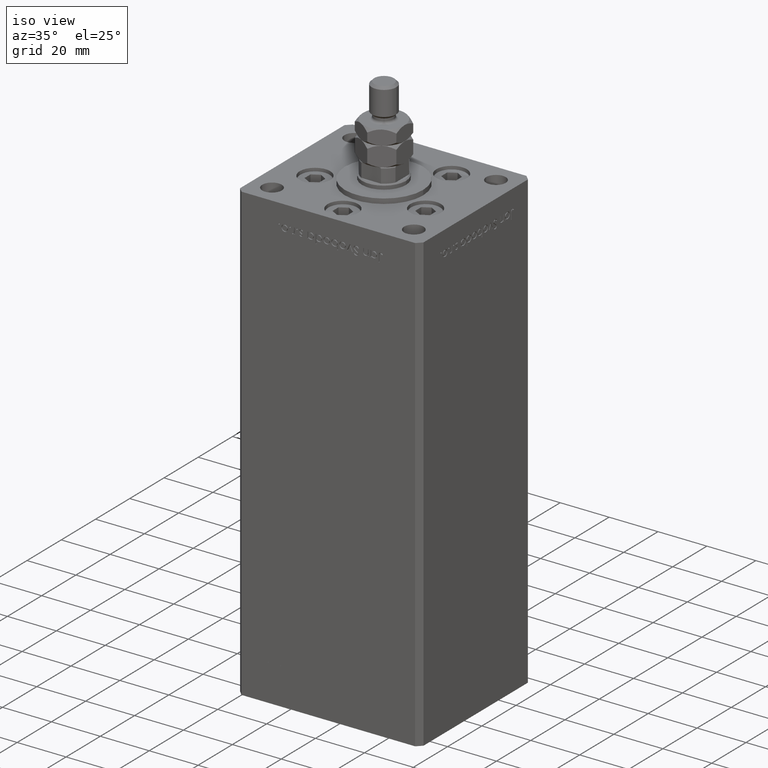
[diagram: clean part render]
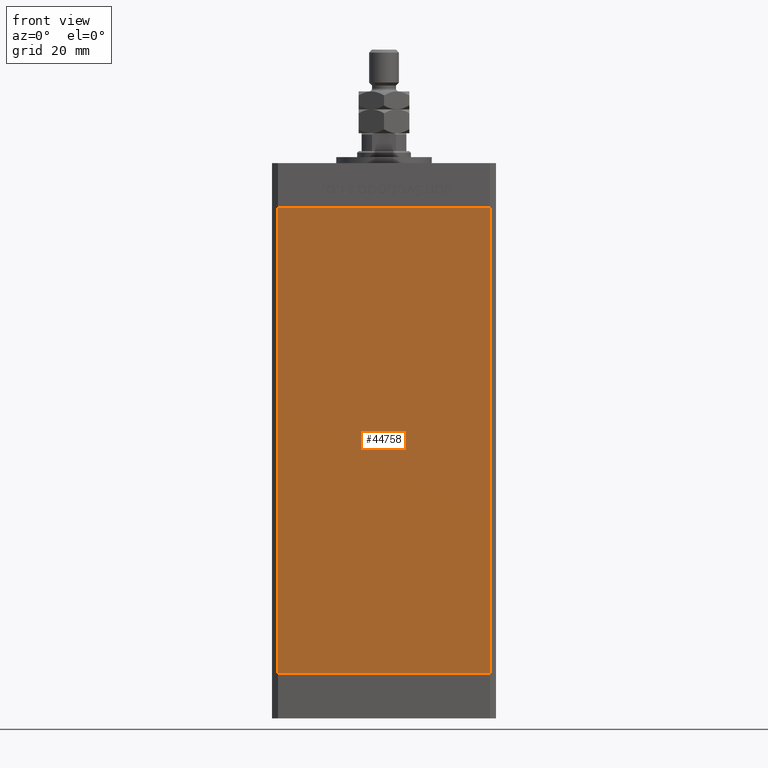
[diagram: tour spotlight — one face highlighted and labeled with its STEP entity id]
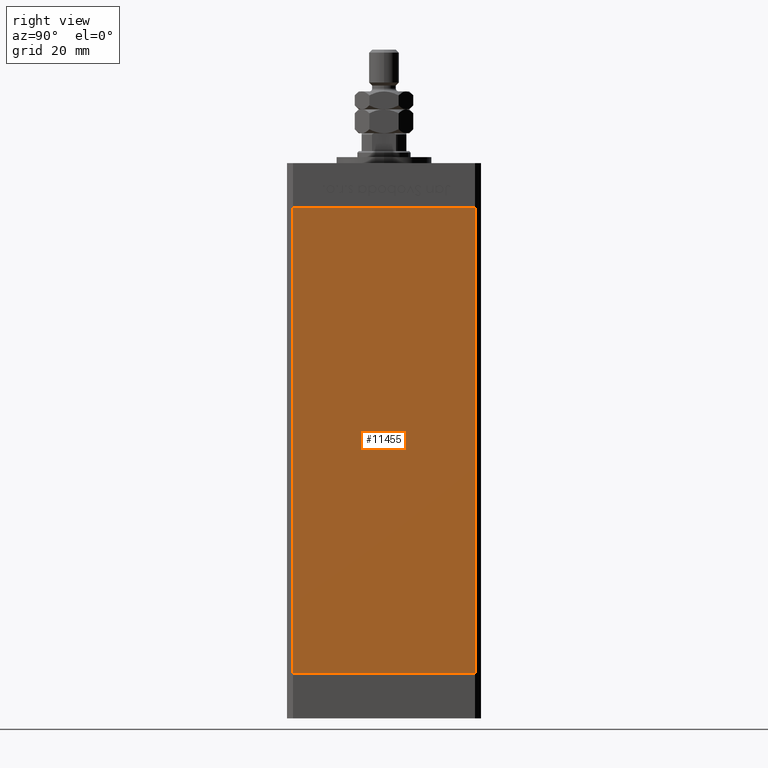
[diagram: tour spotlight — one face highlighted and labeled with its STEP entity id]
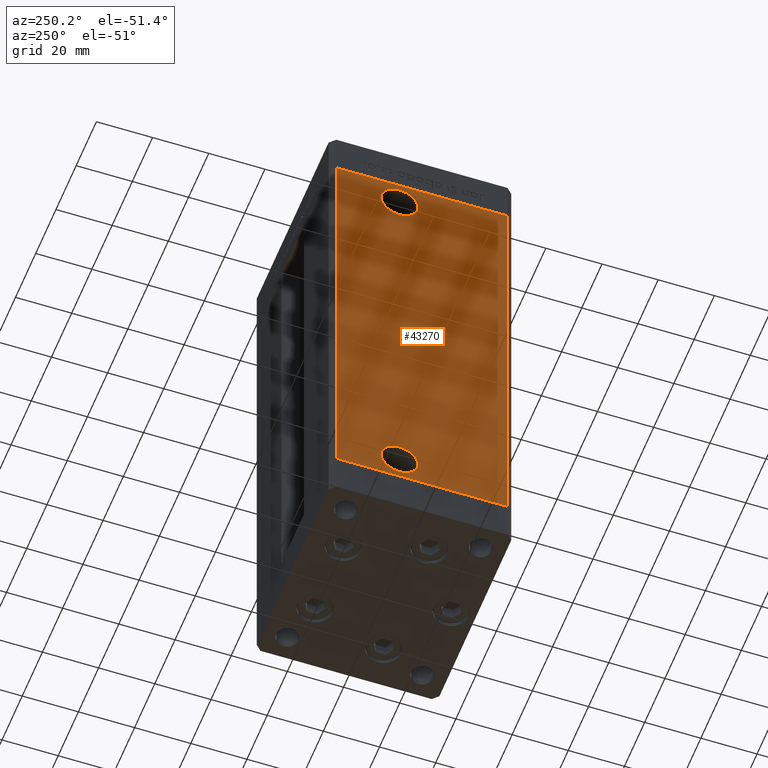
[diagram: tour spotlight — one face highlighted and labeled with its STEP entity id]
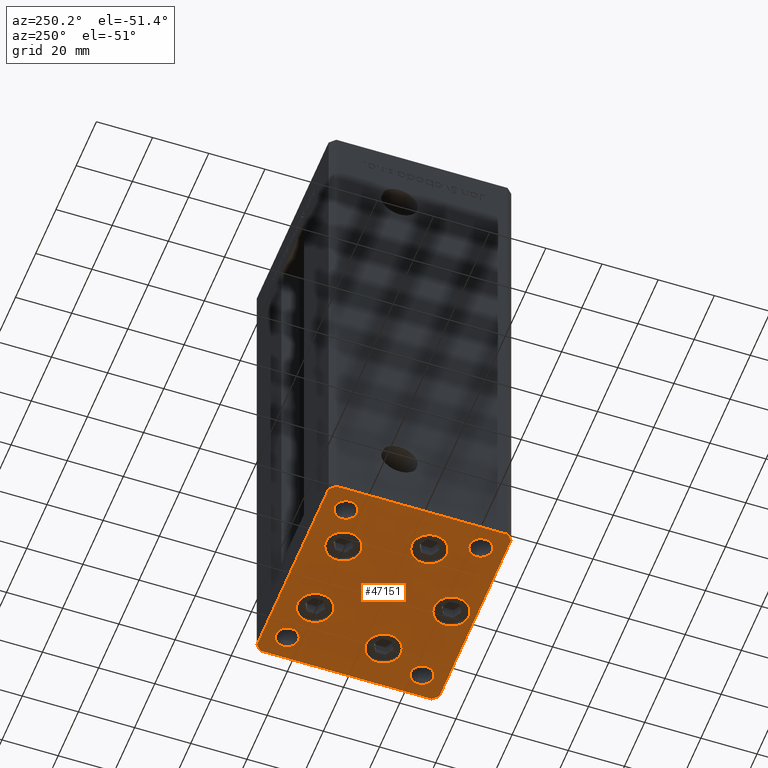
[diagram: tour spotlight — one face highlighted and labeled with its STEP entity id]
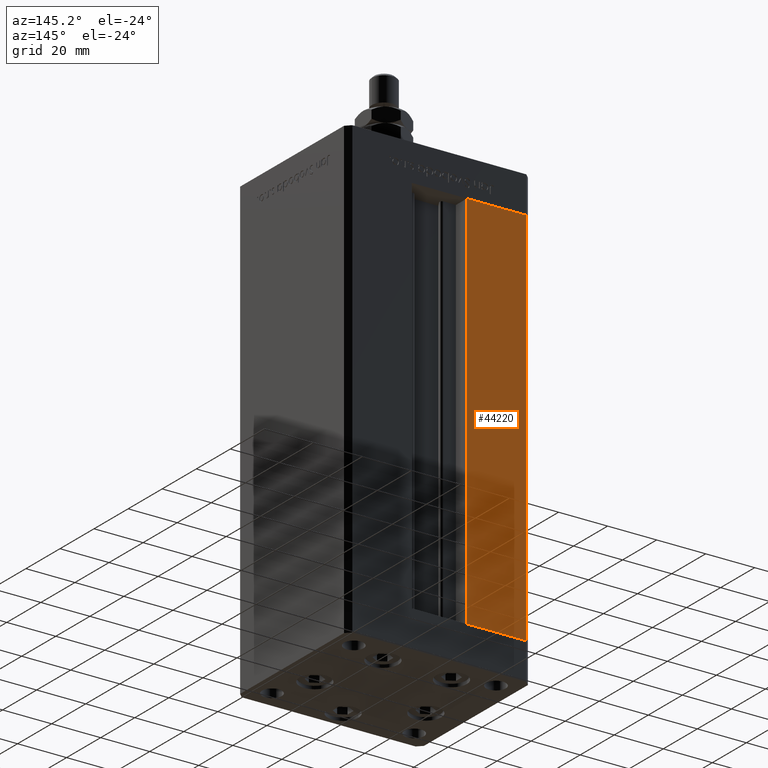
[diagram: tour spotlight — one face highlighted and labeled with its STEP entity id]
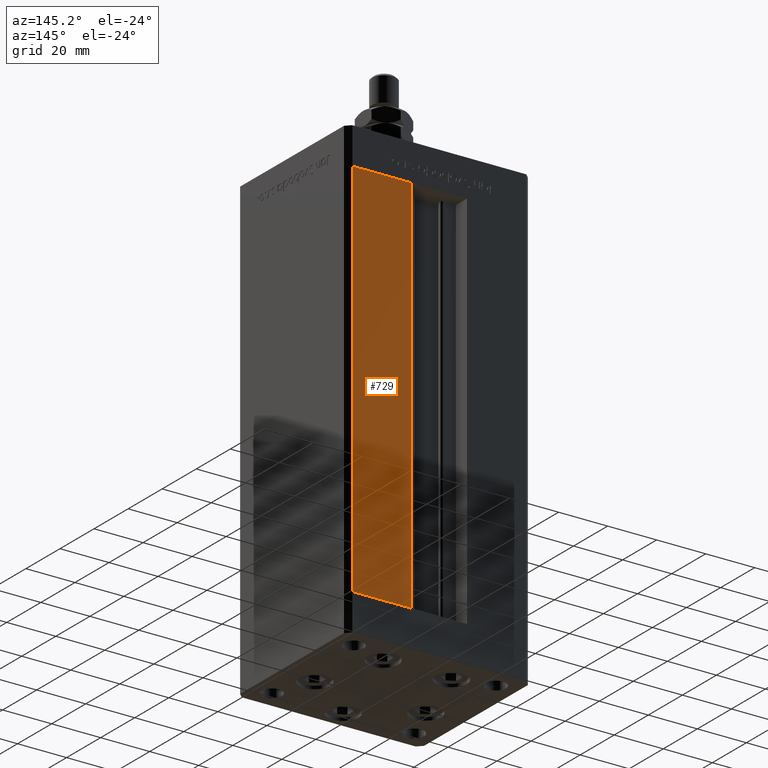
[diagram: tour spotlight — one face highlighted and labeled with its STEP entity id]
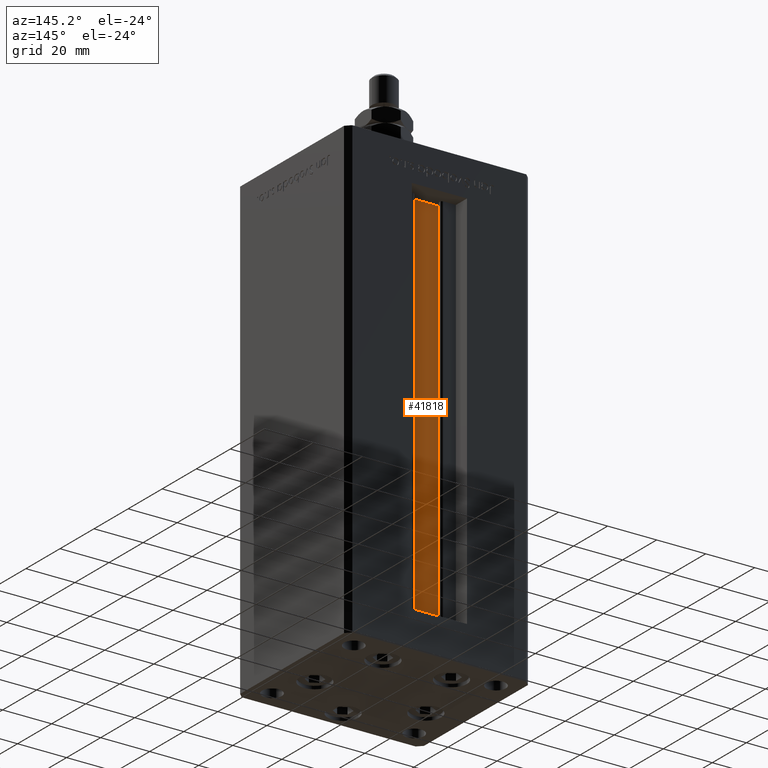
[diagram: tour spotlight — one face highlighted and labeled with its STEP entity id]
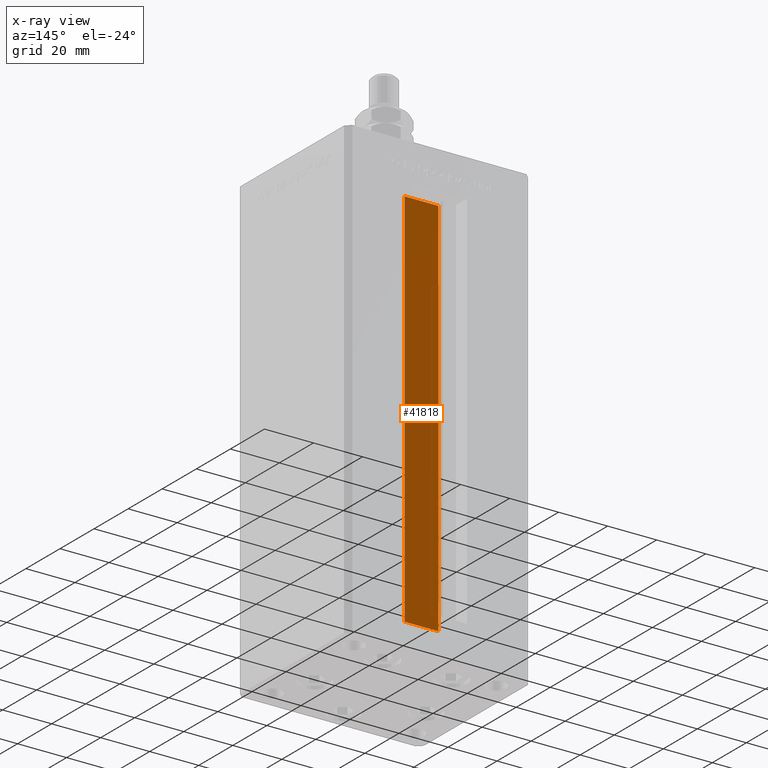
[diagram: x-ray of the same camera — body ghosted, this tour face saturated]
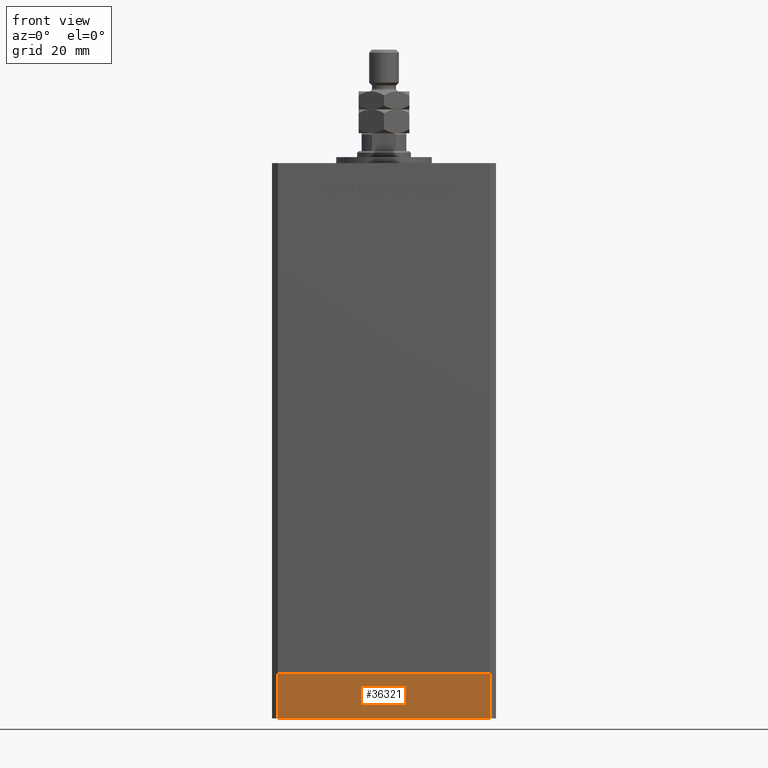
[diagram: tour spotlight — one face highlighted and labeled with its STEP entity id]
A machine part: a face-by-face anatomy tour. The part has 1232 B-rep faces; the first image is the clean iso view, then the 8 largest visible faces are spotlighted one at a time (largest first), each with its STEP entity span.

Face 1 — front view, entity #44758. In plain terms, the highlighted planar face has unit normal (0, 1, 0).
Definition (entity closure, byte-faithful):
#704 = DIRECTION ( 'NONE',  ( -0.000000000000000000, -0.000000000000000000, -1.000000000000000000 ) ) ;
#1212 = CARTESIAN_POINT ( 'NONE',  ( -35.49999999999999289, -32.50000000000000000, 156.0000000000000000 ) ) ;
#1331 = PLANE ( 'NONE',  #12112 ) ;
#3946 = VERTEX_POINT ( 'NONE', #52023 ) ;
#6730 = LINE ( 'NONE', #51826, #38682 ) ;
#7583 = EDGE_CURVE ( 'NONE', #44952, #3946, #21657, .T. ) ;
#8113 = CARTESIAN_POINT ( 'NONE',  ( 35.49999999999999289, -32.50000000000000000, 156.0000000000000000 ) ) ;
#9139 = CARTESIAN_POINT ( 'NONE',  ( 35.49999999999999289, -32.50000000000000000, 156.0000000000000000 ) ) ;
#12112 = AXIS2_PLACEMENT_3D ( 'NONE', #13855, #33943, #42641 ) ;
#13196 = DIRECTION ( 'NONE',  ( 1.000000000000000000, 0.000000000000000000, 0.000000000000000000 ) ) ;
#13676 = CARTESIAN_POINT ( 'NONE',  ( -35.49999999999999289, -32.50000000000000000, 0.000000000000000000 ) ) ;
#13855 = CARTESIAN_POINT ( 'NONE',  ( -35.49999999999999289, -32.50000000000000000, 156.0000000000000000 ) ) ;
#14174 = ORIENTED_EDGE ( 'NONE', *, *, #51198, .T. ) ;
#17173 = VECTOR ( 'NONE', #13196, 1000.000000000000000 ) ;
#20546 = ORIENTED_EDGE ( 'NONE', *, *, #40581, .F. ) ;
#20698 = DIRECTION ( 'NONE',  ( -0.000000000000000000, -0.000000000000000000, -1.000000000000000000 ) ) ;
#21657 = LINE ( 'NONE', #9139, #30343 ) ;
#23747 = VERTEX_POINT ( 'NONE', #13676 ) ;
#24774 = LINE ( 'NONE', #32921, #34688 ) ;
#28317 = VERTEX_POINT ( 'NONE', #36938 ) ;
#30343 = VECTOR ( 'NONE', #704, 1000.000000000000000 ) ;
#30665 = DIRECTION ( 'NONE',  ( 1.000000000000000000, 0.000000000000000000, 0.000000000000000000 ) ) ;
#32106 = ORIENTED_EDGE ( 'NONE', *, *, #35866, .T. ) ;
#32695 = FACE_OUTER_BOUND ( 'NONE', #42237, .T. ) ;
#32921 = CARTESIAN_POINT ( 'NONE',  ( -35.49999999999999289, -32.50000000000000000, 156.0000000000000000 ) ) ;
#33943 = DIRECTION ( 'NONE',  ( 0.000000000000000000, 1.000000000000000000, 0.000000000000000000 ) ) ;
#34688 = VECTOR ( 'NONE', #20698, 1000.000000000000000 ) ;
#35866 = EDGE_CURVE ( 'NONE', #23747, #3946, #6730, .T. ) ;
#36938 = CARTESIAN_POINT ( 'NONE',  ( -35.49999999999999289, -32.50000000000000000, 156.0000000000000000 ) ) ;
#38433 = LINE ( 'NONE', #1212, #17173 ) ;
#38682 = VECTOR ( 'NONE', #30665, 1000.000000000000000 ) ;
#40581 = EDGE_CURVE ( 'NONE', #28317, #44952, #38433, .T. ) ;
#42237 = EDGE_LOOP ( 'NONE', ( #32106, #49315, #20546, #14174 ) ) ;
#42641 = DIRECTION ( 'NONE',  ( 0.000000000000000000, -0.000000000000000000, 1.000000000000000000 ) ) ;
#44758 = ADVANCED_FACE ( 'NONE', ( #32695 ), #1331, .F. ) ;
#44952 = VERTEX_POINT ( 'NONE', #8113 ) ;
#49315 = ORIENTED_EDGE ( 'NONE', *, *, #7583, .F. ) ;
#51198 = EDGE_CURVE ( 'NONE', #28317, #23747, #24774, .T. ) ;
#51826 = CARTESIAN_POINT ( 'NONE',  ( -35.49999999999999289, -32.50000000000000000, 0.000000000000000000 ) ) ;
#52023 = CARTESIAN_POINT ( 'NONE',  ( 35.49999999999999289, -32.50000000000000000, 0.000000000000000000 ) ) ;

Face 2 — right view, entity #11455. In plain terms, the highlighted planar face has unit normal (1, -0, 0).
Definition (entity closure, byte-faithful):
#2229 = DIRECTION ( 'NONE',  ( -0.000000000000000000, -0.000000000000000000, -1.000000000000000000 ) ) ;
#2684 = DIRECTION ( 'NONE',  ( -2.275047181608927644E-16, -1.000000000000000000, 0.000000000000000000 ) ) ;
#3129 = VERTEX_POINT ( 'NONE', #28658 ) ;
#4754 = DIRECTION ( 'NONE',  ( 2.275047181608927644E-16, 1.000000000000000000, 0.000000000000000000 ) ) ;
#6615 = CARTESIAN_POINT ( 'NONE',  ( 37.49999999999999289, -30.50000000000000000, 156.0000000000000000 ) ) ;
#7024 = VECTOR ( 'NONE', #2684, 1000.000000000000000 ) ;
#7821 = EDGE_CURVE ( 'NONE', #53689, #47644, #42762, .T. ) ;
#7842 = CARTESIAN_POINT ( 'NONE',  ( 37.50000000000000711, 30.50000000000000000, 0.000000000000000000 ) ) ;
#11455 = ADVANCED_FACE ( 'NONE', ( #46308 ), #50676, .T. ) ;
#11927 = LINE ( 'NONE', #7842, #7024 ) ;
#12842 = VERTEX_POINT ( 'NONE', #22037 ) ;
#13856 = VECTOR ( 'NONE', #30551, 1000.000000000000000 ) ;
#15535 = ORIENTED_EDGE ( 'NONE', *, *, #47228, .F. ) ;
#15656 = EDGE_CURVE ( 'NONE', #12842, #47644, #11927, .T. ) ;
#17016 = CARTESIAN_POINT ( 'NONE',  ( 37.49999999999999289, -30.50000000000000000, 156.0000000000000000 ) ) ;
#17264 = CARTESIAN_POINT ( 'NONE',  ( 37.50000000000000711, 30.50000000000000000, 156.0000000000000000 ) ) ;
#20553 = DIRECTION ( 'NONE',  ( 1.000000000000000000, -2.275047181608927644E-16, 0.000000000000000000 ) ) ;
#21719 = VECTOR ( 'NONE', #2229, 1000.000000000000000 ) ;
#22037 = CARTESIAN_POINT ( 'NONE',  ( 37.50000000000000711, 30.50000000000000000, 0.000000000000000000 ) ) ;
#24202 = CARTESIAN_POINT ( 'NONE',  ( 37.50000000000000711, 30.50000000000000000, 156.0000000000000000 ) ) ;
#27783 = ORIENTED_EDGE ( 'NONE', *, *, #15656, .F. ) ;
#27826 = VECTOR ( 'NONE', #44815, 1000.000000000000000 ) ;
#28658 = CARTESIAN_POINT ( 'NONE',  ( 37.50000000000000711, 30.50000000000000000, 156.0000000000000000 ) ) ;
#30551 = DIRECTION ( 'NONE',  ( -0.000000000000000000, -0.000000000000000000, -1.000000000000000000 ) ) ;
#32078 = LINE ( 'NONE', #24202, #27826 ) ;
#35660 = CARTESIAN_POINT ( 'NONE',  ( 37.50000000000000711, 30.50000000000000000, 156.0000000000000000 ) ) ;
#37883 = ORIENTED_EDGE ( 'NONE', *, *, #7821, .T. ) ;
#41225 = ORIENTED_EDGE ( 'NONE', *, *, #47742, .T. ) ;
#42762 = LINE ( 'NONE', #6615, #13856 ) ;
#43005 = LINE ( 'NONE', #35660, #21719 ) ;
#43209 = CARTESIAN_POINT ( 'NONE',  ( 37.49999999999999289, -30.50000000000000000, 0.000000000000000000 ) ) ;
#44815 = DIRECTION ( 'NONE',  ( -2.275047181608927644E-16, -1.000000000000000000, 0.000000000000000000 ) ) ;
#46308 = FACE_OUTER_BOUND ( 'NONE', #50946, .T. ) ;
#47228 = EDGE_CURVE ( 'NONE', #3129, #12842, #43005, .T. ) ;
#47644 = VERTEX_POINT ( 'NONE', #43209 ) ;
#47742 = EDGE_CURVE ( 'NONE', #3129, #53689, #32078, .T. ) ;
#49424 = AXIS2_PLACEMENT_3D ( 'NONE', #17264, #20553, #4754 ) ;
#50676 = PLANE ( 'NONE',  #49424 ) ;
#50946 = EDGE_LOOP ( 'NONE', ( #27783, #15535, #41225, #37883 ) ) ;
#53689 = VERTEX_POINT ( 'NONE', #17016 ) ;

Face 3 — auxiliary view, entity #43270. In plain terms, the highlighted planar face has unit normal (1, 0, 0).
Definition (entity closure, byte-faithful):
#1101 = ORIENTED_EDGE ( 'NONE', *, *, #40959, .T. ) ;
#1789 = EDGE_CURVE ( 'NONE', #52091, #44576, #7649, .T. ) ;
#3074 = EDGE_CURVE ( 'NONE', #37679, #8977, #12008, .T. ) ;
#3306 = AXIS2_PLACEMENT_3D ( 'NONE', #28177, #28714, #8044 ) ;
#3901 = CARTESIAN_POINT ( 'NONE',  ( -37.50000000000000000, 14.57999999999999652, 9.000000000000000000 ) ) ;
#4144 = FACE_BOUND ( 'NONE', #22115, .T. ) ;
#4806 = DIRECTION ( 'NONE',  ( -1.000000000000000000, -2.275047181608927644E-16, 0.000000000000000000 ) ) ;
#5254 = CIRCLE ( 'NONE', #35633, 6.580000000000015170 ) ;
#6359 = CARTESIAN_POINT ( 'NONE',  ( -37.50000000000000000, 14.58000000000000718, 147.0000000000000000 ) ) ;
#7649 = CIRCLE ( 'NONE', #3306, 6.580000000000015170 ) ;
#8044 = DIRECTION ( 'NONE',  ( 0.000000000000000000, -1.000000000000000000, 0.000000000000000000 ) ) ;
#8236 = VERTEX_POINT ( 'NONE', #38739 ) ;
#8625 = CARTESIAN_POINT ( 'NONE',  ( -37.50000000000000000, 7.999999999999991118, 147.0000000000000000 ) ) ;
#8977 = VERTEX_POINT ( 'NONE', #3901 ) ;
#10384 = ORIENTED_EDGE ( 'NONE', *, *, #30242, .F. ) ;
#10867 = LINE ( 'NONE', #27725, #19792 ) ;
#11832 = DIRECTION ( 'NONE',  ( -1.000000000000000000, -2.275047181608927644E-16, 0.000000000000000000 ) ) ;
#12008 = CIRCLE ( 'NONE', #15490, 6.580000000000003624 ) ;
#12046 = FACE_BOUND ( 'NONE', #16483, .T. ) ;
#12315 = DIRECTION ( 'NONE',  ( 1.000000000000000000, 2.275047181608927644E-16, -0.000000000000000000 ) ) ;
#12562 = ORIENTED_EDGE ( 'NONE', *, *, #3074, .F. ) ;
#12947 = CARTESIAN_POINT ( 'NONE',  ( -37.49999999999999289, -30.50000000000000000, 156.0000000000000000 ) ) ;
#15461 = LINE ( 'NONE', #44773, #20495 ) ;
#15490 = AXIS2_PLACEMENT_3D ( 'NONE', #19966, #24046, #15617 ) ;
#15617 = DIRECTION ( 'NONE',  ( 0.000000000000000000, -1.000000000000000000, 0.000000000000000000 ) ) ;
#15729 = EDGE_CURVE ( 'NONE', #44576, #52091, #5254, .T. ) ;
#16483 = EDGE_LOOP ( 'NONE', ( #26159, #36284 ) ) ;
#16650 = CARTESIAN_POINT ( 'NONE',  ( -37.50000000000000711, 30.50000000000000000, 156.0000000000000000 ) ) ;
#16796 = ORIENTED_EDGE ( 'NONE', *, *, #34468, .T. ) ;
#16833 = LINE ( 'NONE', #28815, #17840 ) ;
#17093 = EDGE_CURVE ( 'NONE', #8977, #37679, #51347, .T. ) ;
#17840 = VECTOR ( 'NONE', #33387, 1000.000000000000000 ) ;
#19301 = DIRECTION ( 'NONE',  ( 2.275047181608927644E-16, -1.000000000000000000, 0.000000000000000000 ) ) ;
#19792 = VECTOR ( 'NONE', #19301, 1000.000000000000000 ) ;
#19932 = PLANE ( 'NONE',  #52815 ) ;
#19966 = CARTESIAN_POINT ( 'NONE',  ( -37.50000000000000000, 7.999999999999991118, 9.000000000000000000 ) ) ;
#20462 = DIRECTION ( 'NONE',  ( -2.275047181608927644E-16, 1.000000000000000000, 0.000000000000000000 ) ) ;
#20495 = VECTOR ( 'NONE', #44510, 1000.000000000000000 ) ;
#21233 = CARTESIAN_POINT ( 'NONE',  ( -37.50000000000000000, 1.419999999999975948, 147.0000000000000000 ) ) ;
#22115 = EDGE_LOOP ( 'NONE', ( #12562, #26489 ) ) ;
#24046 = DIRECTION ( 'NONE',  ( -1.000000000000000000, -2.275047181608927644E-16, 0.000000000000000000 ) ) ;
#24205 = CARTESIAN_POINT ( 'NONE',  ( -37.50000000000000711, 30.50000000000000000, 156.0000000000000000 ) ) ;
#25400 = CARTESIAN_POINT ( 'NONE',  ( -37.49999999999999289, -30.50000000000000000, 0.000000000000000000 ) ) ;
#26159 = ORIENTED_EDGE ( 'NONE', *, *, #1789, .F. ) ;
#26489 = ORIENTED_EDGE ( 'NONE', *, *, #17093, .F. ) ;
#27725 = CARTESIAN_POINT ( 'NONE',  ( -37.50000000000000711, 30.50000000000000000, 0.000000000000000000 ) ) ;
#27948 = AXIS2_PLACEMENT_3D ( 'NONE', #49313, #11832, #44414 ) ;
#28177 = CARTESIAN_POINT ( 'NONE',  ( -37.50000000000000000, 7.999999999999991118, 147.0000000000000000 ) ) ;
#28626 = FACE_OUTER_BOUND ( 'NONE', #37064, .T. ) ;
#28714 = DIRECTION ( 'NONE',  ( -1.000000000000000000, -2.275047181608927644E-16, 0.000000000000000000 ) ) ;
#28815 = CARTESIAN_POINT ( 'NONE',  ( -37.50000000000000711, 30.50000000000000000, 156.0000000000000000 ) ) ;
#29959 = VERTEX_POINT ( 'NONE', #25400 ) ;
#30242 = EDGE_CURVE ( 'NONE', #52790, #29959, #15461, .T. ) ;
#32021 = ORIENTED_EDGE ( 'NONE', *, *, #42729, .F. ) ;
#32874 = LINE ( 'NONE', #24205, #51070 ) ;
#33387 = DIRECTION ( 'NONE',  ( -0.000000000000000000, -0.000000000000000000, -1.000000000000000000 ) ) ;
#34468 = EDGE_CURVE ( 'NONE', #51130, #8236, #16833, .T. ) ;
#35633 = AXIS2_PLACEMENT_3D ( 'NONE', #8625, #4806, #45571 ) ;
#36284 = ORIENTED_EDGE ( 'NONE', *, *, #15729, .F. ) ;
#37064 = EDGE_LOOP ( 'NONE', ( #1101, #10384, #32021, #16796 ) ) ;
#37679 = VERTEX_POINT ( 'NONE', #49988 ) ;
#38739 = CARTESIAN_POINT ( 'NONE',  ( -37.50000000000000711, 30.50000000000000000, 0.000000000000000000 ) ) ;
#40959 = EDGE_CURVE ( 'NONE', #8236, #29959, #10867, .T. ) ;
#42177 = CARTESIAN_POINT ( 'NONE',  ( -37.50000000000000711, 30.50000000000000000, 156.0000000000000000 ) ) ;
#42729 = EDGE_CURVE ( 'NONE', #51130, #52790, #32874, .T. ) ;
#43270 = ADVANCED_FACE ( 'NONE', ( #4144, #12046, #28626 ), #19932, .F. ) ;
#44414 = DIRECTION ( 'NONE',  ( 0.000000000000000000, -1.000000000000000000, 0.000000000000000000 ) ) ;
#44510 = DIRECTION ( 'NONE',  ( -0.000000000000000000, -0.000000000000000000, -1.000000000000000000 ) ) ;
#44576 = VERTEX_POINT ( 'NONE', #6359 ) ;
#44773 = CARTESIAN_POINT ( 'NONE',  ( -37.49999999999999289, -30.50000000000000000, 156.0000000000000000 ) ) ;
#45571 = DIRECTION ( 'NONE',  ( 0.000000000000000000, -1.000000000000000000, 0.000000000000000000 ) ) ;
#49313 = CARTESIAN_POINT ( 'NONE',  ( -37.50000000000000000, 7.999999999999991118, 9.000000000000000000 ) ) ;
#49455 = DIRECTION ( 'NONE',  ( 2.275047181608927644E-16, -1.000000000000000000, 0.000000000000000000 ) ) ;
#49988 = CARTESIAN_POINT ( 'NONE',  ( -37.50000000000000000, 1.419999999999988161, 9.000000000000000000 ) ) ;
#51070 = VECTOR ( 'NONE', #49455, 1000.000000000000000 ) ;
#51130 = VERTEX_POINT ( 'NONE', #42177 ) ;
#51347 = CIRCLE ( 'NONE', #27948, 6.580000000000003624 ) ;
#52091 = VERTEX_POINT ( 'NONE', #21233 ) ;
#52790 = VERTEX_POINT ( 'NONE', #12947 ) ;
#52815 = AXIS2_PLACEMENT_3D ( 'NONE', #16650, #12315, #20462 ) ;

Face 4 — auxiliary view, entity #47151. In plain terms, the highlighted planar face has unit normal (0, 0, -1).
Definition (entity closure, byte-faithful):
#111 = FACE_BOUND ( 'NONE', #43361, .T. ) ;
#153 = VERTEX_POINT ( 'NONE', #41896 ) ;
#363 = FACE_OUTER_BOUND ( 'NONE', #7385, .T. ) ;
#706 = VECTOR ( 'NONE', #4625, 1000.000000000000000 ) ;
#809 = CARTESIAN_POINT ( 'NONE',  ( 7.741068579633223479, 19.50000000000000000, 0.000000000000000000 ) ) ;
#814 = DIRECTION ( 'NONE',  ( 0.7071067811865474617, -0.7071067811865474617, 0.000000000000000000 ) ) ;
#899 = DIRECTION ( 'NONE',  ( -0.000000000000000000, 0.000000000000000000, 1.000000000000000000 ) ) ;
#913 = CARTESIAN_POINT ( 'NONE',  ( 22.62741699796951877, -8.000000000000000000, 0.000000000000000000 ) ) ;
#1112 = DIRECTION ( 'NONE',  ( 0.000000000000000000, -0.000000000000000000, -1.000000000000000000 ) ) ;
#1147 = VERTEX_POINT ( 'NONE', #7369 ) ;
#2029 = LINE ( 'NONE', #27063, #40750 ) ;
#2144 = VERTEX_POINT ( 'NONE', #44918 ) ;
#2834 = DIRECTION ( 'NONE',  ( 0.000000000000000000, -0.000000000000000000, -1.000000000000000000 ) ) ;
#2994 = EDGE_CURVE ( 'NONE', #30061, #53235, #42374, .T. ) ;
#3323 = DIRECTION ( 'NONE',  ( 0.000000000000000000, -0.000000000000000000, -1.000000000000000000 ) ) ;
#3983 = CARTESIAN_POINT ( 'NONE',  ( -29.00000000000001066, 24.00000000000000711, 0.000000000000000000 ) ) ;
#4554 = AXIS2_PLACEMENT_3D ( 'NONE', #38837, #26916, #52162 ) ;
#4625 = DIRECTION ( 'NONE',  ( -0.7071067811865426878, -0.7071067811865524577, 0.000000000000000000 ) ) ;
#4711 = PLANE ( 'NONE',  #32126 ) ;
#4897 = EDGE_CURVE ( 'NONE', #43707, #26948, #21610, .T. ) ;
#4953 = CARTESIAN_POINT ( 'NONE',  ( -35.50000000000002842, 32.49999999999999289, 0.000000000000000000 ) ) ;
#5056 = CIRCLE ( 'NONE', #44981, 6.250000000000000000 ) ;
#5152 = CARTESIAN_POINT ( 'NONE',  ( -22.62741699796951877, -8.000000000000005329, 0.000000000000000000 ) ) ;
#5170 = CIRCLE ( 'NONE', #9486, 4.000000000000000000 ) ;
#5544 = CARTESIAN_POINT ( 'NONE',  ( -7.741068579633227031, 19.49999999999999645, 0.000000000000000000 ) ) ;
#5807 = LINE ( 'NONE', #22126, #38369 ) ;
#5915 = AXIS2_PLACEMENT_3D ( 'NONE', #34402, #38736, #42284 ) ;
#5938 = DIRECTION ( 'NONE',  ( 0.000000000000000000, -0.000000000000000000, -1.000000000000000000 ) ) ;
#5969 = AXIS2_PLACEMENT_3D ( 'NONE', #19714, #27604, #44410 ) ;
#6109 = ORIENTED_EDGE ( 'NONE', *, *, #4897, .T. ) ;
#6120 = CIRCLE ( 'NONE', #29555, 6.250000000000000000 ) ;
#6818 = VECTOR ( 'NONE', #32709, 1000.000000000000000 ) ;
#7259 = EDGE_CURVE ( 'NONE', #2144, #18031, #8647, .T. ) ;
#7369 = CARTESIAN_POINT ( 'NONE',  ( -33.00000000000000711, -23.99999999999999289, 0.000000000000000000 ) ) ;
#7380 = CARTESIAN_POINT ( 'NONE',  ( 16.37741699796951877, -8.000000000000000000, 0.000000000000000000 ) ) ;
#7385 = EDGE_LOOP ( 'NONE', ( #15666, #24748, #36889, #13541, #31621, #26583, #51186, #25674 ) ) ;
#7413 = CIRCLE ( 'NONE', #21297, 3.999999999999996447 ) ;
#7696 = VERTEX_POINT ( 'NONE', #12115 ) ;
#7796 = CIRCLE ( 'NONE', #52895, 4.000000000000003553 ) ;
#8038 = CARTESIAN_POINT ( 'NONE',  ( 6.250000000000002665, -24.00000000000000000, 0.000000000000000000 ) ) ;
#8174 = VERTEX_POINT ( 'NONE', #11919 ) ;
#8208 = ORIENTED_EDGE ( 'NONE', *, *, #50344, .T. ) ;
#8647 = CIRCLE ( 'NONE', #10273, 4.000000000000003553 ) ;
#9218 = EDGE_CURVE ( 'NONE', #9843, #25286, #29635, .T. ) ;
#9240 = EDGE_CURVE ( 'NONE', #42230, #40891, #31115, .T. ) ;
#9414 = VERTEX_POINT ( 'NONE', #48618 ) ;
#9486 = AXIS2_PLACEMENT_3D ( 'NONE', #16414, #52545, #49560 ) ;
#9699 = EDGE_CURVE ( 'NONE', #41747, #33829, #36782, .T. ) ;
#9843 = VERTEX_POINT ( 'NONE', #4953 ) ;
#9924 = EDGE_LOOP ( 'NONE', ( #6109, #33682 ) ) ;
#10212 = CARTESIAN_POINT ( 'NONE',  ( 37.49999999999992184, 30.50000000000001066, 0.000000000000000000 ) ) ;
#10273 = AXIS2_PLACEMENT_3D ( 'NONE', #20393, #49456, #49717 ) ;
#10589 = ORIENTED_EDGE ( 'NONE', *, *, #41815, .T. ) ;
#11066 = CARTESIAN_POINT ( 'NONE',  ( -37.50000000000001421, 30.49999999999998579, 0.000000000000000000 ) ) ;
#11104 = AXIS2_PLACEMENT_3D ( 'NONE', #13107, #1112, #45958 ) ;
#11303 = EDGE_CURVE ( 'NONE', #25286, #51935, #40927, .T. ) ;
#11305 = DIRECTION ( 'NONE',  ( -1.478780668045802821E-15, 1.000000000000000000, 0.000000000000000000 ) ) ;
#11919 = CARTESIAN_POINT ( 'NONE',  ( 25.00000000000000711, 24.00000000000000711, 0.000000000000000000 ) ) ;
#12115 = CARTESIAN_POINT ( 'NONE',  ( -16.37741699796951877, -8.000000000000005329, 0.000000000000000000 ) ) ;
#12329 = EDGE_LOOP ( 'NONE', ( #53611, #32911 ) ) ;
#12364 = DIRECTION ( 'NONE',  ( 1.000000000000000000, 0.000000000000000000, 0.000000000000000000 ) ) ;
#12620 = FACE_BOUND ( 'NONE', #37616, .T. ) ;
#12808 = EDGE_CURVE ( 'NONE', #1147, #16592, #27791, .T. ) ;
#13107 = CARTESIAN_POINT ( 'NONE',  ( -22.62741699796951877, -8.000000000000005329, 0.000000000000000000 ) ) ;
#13147 = FACE_BOUND ( 'NONE', #30159, .T. ) ;
#13541 = ORIENTED_EDGE ( 'NONE', *, *, #13686, .T. ) ;
#13686 = EDGE_CURVE ( 'NONE', #33829, #16860, #24601, .T. ) ;
#14080 = EDGE_CURVE ( 'NONE', #42495, #8174, #22619, .T. ) ;
#14366 = EDGE_CURVE ( 'NONE', #26948, #43707, #6120, .T. ) ;
#14520 = DIRECTION ( 'NONE',  ( 0.000000000000000000, -0.000000000000000000, -1.000000000000000000 ) ) ;
#14681 = CARTESIAN_POINT ( 'NONE',  ( -20.24106857963322881, 19.49999999999999645, 0.000000000000000000 ) ) ;
#14807 = DIRECTION ( 'NONE',  ( 0.000000000000000000, -0.000000000000000000, -1.000000000000000000 ) ) ;
#15061 = CARTESIAN_POINT ( 'NONE',  ( 13.99106857963322348, 19.50000000000000000, 0.000000000000000000 ) ) ;
#15292 = CIRCLE ( 'NONE', #26585, 6.250000000000001776 ) ;
#15605 = AXIS2_PLACEMENT_3D ( 'NONE', #40261, #3323, #52759 ) ;
#15618 = DIRECTION ( 'NONE',  ( 1.000000000000000000, 0.000000000000000000, 0.000000000000000000 ) ) ;
#15620 = ORIENTED_EDGE ( 'NONE', *, *, #9240, .F. ) ;
#15666 = ORIENTED_EDGE ( 'NONE', *, *, #52169, .T. ) ;
#15984 = VERTEX_POINT ( 'NONE', #7380 ) ;
#16414 = CARTESIAN_POINT ( 'NONE',  ( -29.00000000000001066, -23.99999999999999289, 0.000000000000000000 ) ) ;
#16592 = VERTEX_POINT ( 'NONE', #22783 ) ;
#16860 = VERTEX_POINT ( 'NONE', #10212 ) ;
#16957 = DIRECTION ( 'NONE',  ( -0.000000000000000000, 0.000000000000000000, 1.000000000000000000 ) ) ;
#17135 = CARTESIAN_POINT ( 'NONE',  ( -33.00000000000000711, 24.00000000000000711, 0.000000000000000000 ) ) ;
#17201 = EDGE_CURVE ( 'NONE', #8174, #42495, #46980, .T. ) ;
#17284 = EDGE_CURVE ( 'NONE', #9414, #9843, #51437, .T. ) ;
#17490 = FACE_BOUND ( 'NONE', #9924, .T. ) ;
#17528 = VECTOR ( 'NONE', #42469, 1000.000000000000000 ) ;
#18031 = VERTEX_POINT ( 'NONE', #20272 ) ;
#18143 = CARTESIAN_POINT ( 'NONE',  ( -35.49999999999998579, -32.50000000000001421, 0.000000000000000000 ) ) ;
#18284 = EDGE_CURVE ( 'NONE', #16860, #9414, #5807, .T. ) ;
#18346 = CARTESIAN_POINT ( 'NONE',  ( -13.99106857963322703, 19.49999999999999645, 0.000000000000000000 ) ) ;
#18965 = CIRCLE ( 'NONE', #5915, 6.250000000000000000 ) ;
#19046 = VECTOR ( 'NONE', #28723, 1000.000000000000000 ) ;
#19191 = VERTEX_POINT ( 'NONE', #30525 ) ;
#19714 = CARTESIAN_POINT ( 'NONE',  ( 2.939152317953647500E-15, -24.00000000000000000, 0.000000000000000000 ) ) ;
#20272 = CARTESIAN_POINT ( 'NONE',  ( 33.00000000000001421, -23.99999999999999289, 0.000000000000000000 ) ) ;
#20368 = CARTESIAN_POINT ( 'NONE',  ( 20.24106857963322526, 19.50000000000000000, 0.000000000000000000 ) ) ;
#20393 = CARTESIAN_POINT ( 'NONE',  ( 29.00000000000001066, -23.99999999999999289, 0.000000000000000000 ) ) ;
#21297 = AXIS2_PLACEMENT_3D ( 'NONE', #3983, #37108, #28994 ) ;
#21610 = CIRCLE ( 'NONE', #5969, 6.250000000000000000 ) ;
#21729 = CARTESIAN_POINT ( 'NONE',  ( 2.939152317953647500E-15, -24.00000000000000000, 0.000000000000000000 ) ) ;
#22126 = CARTESIAN_POINT ( 'NONE',  ( 37.49999999999992184, 30.50000000000001066, 0.000000000000000000 ) ) ;
#22301 = DIRECTION ( 'NONE',  ( 0.000000000000000000, -0.000000000000000000, -1.000000000000000000 ) ) ;
#22461 = ORIENTED_EDGE ( 'NONE', *, *, #12808, .T. ) ;
#22462 = AXIS2_PLACEMENT_3D ( 'NONE', #25296, #33954, #33420 ) ;
#22538 = CIRCLE ( 'NONE', #15605, 6.250000000000000000 ) ;
#22619 = CIRCLE ( 'NONE', #52978, 4.000000000000003553 ) ;
#22783 = CARTESIAN_POINT ( 'NONE',  ( -25.00000000000001066, -23.99999999999999289, 0.000000000000000000 ) ) ;
#22875 = CARTESIAN_POINT ( 'NONE',  ( 33.00000000000001421, 24.00000000000000711, 0.000000000000000000 ) ) ;
#22977 = DIRECTION ( 'NONE',  ( 1.000000000000000000, 9.773090005503140331E-17, 0.000000000000000000 ) ) ;
#23055 = AXIS2_PLACEMENT_3D ( 'NONE', #913, #33795, #50381 ) ;
#23151 = VERTEX_POINT ( 'NONE', #18143 ) ;
#23788 = CIRCLE ( 'NONE', #4554, 6.250000000000001776 ) ;
#24056 = EDGE_CURVE ( 'NONE', #19191, #15984, #23788, .T. ) ;
#24096 = ORIENTED_EDGE ( 'NONE', *, *, #24056, .T. ) ;
#24601 = LINE ( 'NONE', #32219, #31311 ) ;
#24748 = ORIENTED_EDGE ( 'NONE', *, *, #46219, .T. ) ;
#24941 = CARTESIAN_POINT ( 'NONE',  ( 35.50000000000000711, -32.50000000000000711, 0.000000000000000000 ) ) ;
#25064 = CARTESIAN_POINT ( 'NONE',  ( 29.00000000000001066, 24.00000000000000711, 0.000000000000000000 ) ) ;
#25286 = VERTEX_POINT ( 'NONE', #29401 ) ;
#25296 = CARTESIAN_POINT ( 'NONE',  ( -29.00000000000001066, 24.00000000000000711, 0.000000000000000000 ) ) ;
#25674 = ORIENTED_EDGE ( 'NONE', *, *, #11303, .T. ) ;
#25819 = CARTESIAN_POINT ( 'NONE',  ( -35.50000000000002842, 32.49999999999999289, 0.000000000000000000 ) ) ;
#26583 = ORIENTED_EDGE ( 'NONE', *, *, #17284, .T. ) ;
#26585 = AXIS2_PLACEMENT_3D ( 'NONE', #5152, #30440, #50266 ) ;
#26916 = DIRECTION ( 'NONE',  ( 0.000000000000000000, -0.000000000000000000, -1.000000000000000000 ) ) ;
#26948 = VERTEX_POINT ( 'NONE', #8038 ) ;
#27063 = CARTESIAN_POINT ( 'NONE',  ( -35.49999999999998579, -32.50000000000001421, 0.000000000000000000 ) ) ;
#27604 = DIRECTION ( 'NONE',  ( 0.000000000000000000, -0.000000000000000000, -1.000000000000000000 ) ) ;
#27721 = ORIENTED_EDGE ( 'NONE', *, *, #7259, .T. ) ;
#27791 = CIRCLE ( 'NONE', #52035, 4.000000000000000000 ) ;
#28238 = ORIENTED_EDGE ( 'NONE', *, *, #29972, .T. ) ;
#28723 = DIRECTION ( 'NONE',  ( 4.550094363217855288E-16, -1.000000000000000000, 0.000000000000000000 ) ) ;
#28994 = DIRECTION ( 'NONE',  ( 1.000000000000000000, 0.000000000000000000, 0.000000000000000000 ) ) ;
#29198 = FACE_BOUND ( 'NONE', #31774, .T. ) ;
#29401 = CARTESIAN_POINT ( 'NONE',  ( -37.50000000000001421, 30.49999999999998579, 0.000000000000000000 ) ) ;
#29555 = AXIS2_PLACEMENT_3D ( 'NONE', #21729, #5938, #42625 ) ;
#29635 = LINE ( 'NONE', #25819, #706 ) ;
#29702 = EDGE_LOOP ( 'NONE', ( #28238, #24096 ) ) ;
#29724 = CARTESIAN_POINT ( 'NONE',  ( 0.000000000000000000, 0.000000000000000000, 0.000000000000000000 ) ) ;
#29972 = EDGE_CURVE ( 'NONE', #15984, #19191, #46441, .T. ) ;
#30061 = VERTEX_POINT ( 'NONE', #5544 ) ;
#30159 = EDGE_LOOP ( 'NONE', ( #15620, #39340 ) ) ;
#30440 = DIRECTION ( 'NONE',  ( 0.000000000000000000, -0.000000000000000000, -1.000000000000000000 ) ) ;
#30525 = CARTESIAN_POINT ( 'NONE',  ( 28.87741699796952233, -8.000000000000000000, 0.000000000000000000 ) ) ;
#30576 = ORIENTED_EDGE ( 'NONE', *, *, #31337, .T. ) ;
#30983 = DIRECTION ( 'NONE',  ( 1.000000000000000000, 0.000000000000000000, 0.000000000000000000 ) ) ;
#31064 = CIRCLE ( 'NONE', #11104, 6.250000000000001776 ) ;
#31115 = CIRCLE ( 'NONE', #22462, 3.999999999999996447 ) ;
#31311 = VECTOR ( 'NONE', #11305, 1000.000000000000000 ) ;
#31337 = EDGE_CURVE ( 'NONE', #153, #7696, #15292, .T. ) ;
#31621 = ORIENTED_EDGE ( 'NONE', *, *, #18284, .T. ) ;
#31774 = EDGE_LOOP ( 'NONE', ( #8208, #27721 ) ) ;
#31977 = AXIS2_PLACEMENT_3D ( 'NONE', #18346, #14807, #35706 ) ;
#32110 = ORIENTED_EDGE ( 'NONE', *, *, #50225, .T. ) ;
#32126 = AXIS2_PLACEMENT_3D ( 'NONE', #29724, #16957, #33512 ) ;
#32219 = CARTESIAN_POINT ( 'NONE',  ( 37.50000000000001421, -30.50000000000000711, 0.000000000000000000 ) ) ;
#32317 = EDGE_LOOP ( 'NONE', ( #47688, #10589 ) ) ;
#32380 = VERTEX_POINT ( 'NONE', #20368 ) ;
#32709 = DIRECTION ( 'NONE',  ( 0.7071067811865487940, 0.7071067811865463515, 0.000000000000000000 ) ) ;
#32714 = CARTESIAN_POINT ( 'NONE',  ( 29.00000000000001066, -23.99999999999999289, 0.000000000000000000 ) ) ;
#32723 = EDGE_CURVE ( 'NONE', #40891, #42230, #7413, .T. ) ;
#32911 = ORIENTED_EDGE ( 'NONE', *, *, #2994, .T. ) ;
#33420 = DIRECTION ( 'NONE',  ( 1.000000000000000000, 0.000000000000000000, 0.000000000000000000 ) ) ;
#33512 = DIRECTION ( 'NONE',  ( 1.000000000000000000, 0.000000000000000000, 0.000000000000000000 ) ) ;
#33682 = ORIENTED_EDGE ( 'NONE', *, *, #14366, .T. ) ;
#33795 = DIRECTION ( 'NONE',  ( 0.000000000000000000, -0.000000000000000000, -1.000000000000000000 ) ) ;
#33829 = VERTEX_POINT ( 'NONE', #38179 ) ;
#33954 = DIRECTION ( 'NONE',  ( -0.000000000000000000, 0.000000000000000000, 1.000000000000000000 ) ) ;
#34402 = CARTESIAN_POINT ( 'NONE',  ( 13.99106857963322348, 19.50000000000000000, 0.000000000000000000 ) ) ;
#34722 = VECTOR ( 'NONE', #814, 1000.000000000000114 ) ;
#35706 = DIRECTION ( 'NONE',  ( 1.000000000000000000, 0.000000000000000000, 0.000000000000000000 ) ) ;
#35746 = AXIS2_PLACEMENT_3D ( 'NONE', #41148, #899, #12364 ) ;
#36782 = LINE ( 'NONE', #53351, #6818 ) ;
#36889 = ORIENTED_EDGE ( 'NONE', *, *, #9699, .T. ) ;
#37108 = DIRECTION ( 'NONE',  ( -0.000000000000000000, 0.000000000000000000, 1.000000000000000000 ) ) ;
#37322 = FACE_BOUND ( 'NONE', #29702, .T. ) ;
#37616 = EDGE_LOOP ( 'NONE', ( #43460, #46712 ) ) ;
#38179 = CARTESIAN_POINT ( 'NONE',  ( 37.50000000000001421, -30.50000000000000711, 0.000000000000000000 ) ) ;
#38369 = VECTOR ( 'NONE', #50913, 999.9999999999998863 ) ;
#38736 = DIRECTION ( 'NONE',  ( 0.000000000000000000, -0.000000000000000000, -1.000000000000000000 ) ) ;
#38837 = CARTESIAN_POINT ( 'NONE',  ( 22.62741699796951877, -8.000000000000000000, 0.000000000000000000 ) ) ;
#39108 = LINE ( 'NONE', #51360, #34722 ) ;
#39340 = ORIENTED_EDGE ( 'NONE', *, *, #32723, .F. ) ;
#39951 = CARTESIAN_POINT ( 'NONE',  ( -6.249999999999997335, -24.00000000000000000, 0.000000000000000000 ) ) ;
#39990 = CARTESIAN_POINT ( 'NONE',  ( -37.49999999999998579, -30.50000000000001421, 0.000000000000000000 ) ) ;
#40029 = DIRECTION ( 'NONE',  ( 1.000000000000000000, 0.000000000000000000, 0.000000000000000000 ) ) ;
#40261 = CARTESIAN_POINT ( 'NONE',  ( -13.99106857963322703, 19.49999999999999645, 0.000000000000000000 ) ) ;
#40750 = VECTOR ( 'NONE', #22977, 1000.000000000000000 ) ;
#40891 = VERTEX_POINT ( 'NONE', #17135 ) ;
#40927 = LINE ( 'NONE', #11066, #19046 ) ;
#41148 = CARTESIAN_POINT ( 'NONE',  ( 29.00000000000001066, 24.00000000000000711, 0.000000000000000000 ) ) ;
#41421 = EDGE_CURVE ( 'NONE', #7696, #153, #31064, .T. ) ;
#41747 = VERTEX_POINT ( 'NONE', #24941 ) ;
#41815 = EDGE_CURVE ( 'NONE', #32380, #51344, #18965, .T. ) ;
#41896 = CARTESIAN_POINT ( 'NONE',  ( -28.87741699796952233, -8.000000000000005329, 0.000000000000000000 ) ) ;
#42221 = EDGE_CURVE ( 'NONE', #51344, #32380, #5056, .T. ) ;
#42230 = VERTEX_POINT ( 'NONE', #51462 ) ;
#42284 = DIRECTION ( 'NONE',  ( 1.000000000000000000, 0.000000000000000000, 0.000000000000000000 ) ) ;
#42374 = CIRCLE ( 'NONE', #31977, 6.250000000000000000 ) ;
#42460 = FACE_BOUND ( 'NONE', #53290, .T. ) ;
#42469 = DIRECTION ( 'NONE',  ( -1.000000000000000000, -1.954618001100629052E-16, 0.000000000000000000 ) ) ;
#42495 = VERTEX_POINT ( 'NONE', #22875 ) ;
#42545 = ORIENTED_EDGE ( 'NONE', *, *, #41421, .T. ) ;
#42625 = DIRECTION ( 'NONE',  ( 1.000000000000000000, 0.000000000000000000, 0.000000000000000000 ) ) ;
#43361 = EDGE_LOOP ( 'NONE', ( #30576, #42545 ) ) ;
#43460 = ORIENTED_EDGE ( 'NONE', *, *, #14080, .F. ) ;
#43707 = VERTEX_POINT ( 'NONE', #39951 ) ;
#44410 = DIRECTION ( 'NONE',  ( 1.000000000000000000, 0.000000000000000000, 0.000000000000000000 ) ) ;
#44918 = CARTESIAN_POINT ( 'NONE',  ( 25.00000000000000711, -23.99999999999999289, 0.000000000000000000 ) ) ;
#44981 = AXIS2_PLACEMENT_3D ( 'NONE', #15061, #14520, #40029 ) ;
#45958 = DIRECTION ( 'NONE',  ( 1.000000000000000000, 0.000000000000000000, 0.000000000000000000 ) ) ;
#46219 = EDGE_CURVE ( 'NONE', #23151, #41747, #2029, .T. ) ;
#46441 = CIRCLE ( 'NONE', #23055, 6.250000000000001776 ) ;
#46461 = EDGE_CURVE ( 'NONE', #53235, #30061, #22538, .T. ) ;
#46712 = ORIENTED_EDGE ( 'NONE', *, *, #17201, .F. ) ;
#46980 = CIRCLE ( 'NONE', #35746, 4.000000000000003553 ) ;
#47151 = ADVANCED_FACE ( 'NONE', ( #49836, #50631, #37322, #17490, #111, #12620, #29198, #13147, #363, #42460 ), #4711, .T. ) ;
#47281 = DIRECTION ( 'NONE',  ( -0.000000000000000000, 0.000000000000000000, 1.000000000000000000 ) ) ;
#47688 = ORIENTED_EDGE ( 'NONE', *, *, #42221, .T. ) ;
#47835 = DIRECTION ( 'NONE',  ( 1.000000000000000000, 0.000000000000000000, 0.000000000000000000 ) ) ;
#48618 = CARTESIAN_POINT ( 'NONE',  ( 35.49999999999992184, 32.50000000000000711, 0.000000000000000000 ) ) ;
#49456 = DIRECTION ( 'NONE',  ( 0.000000000000000000, -0.000000000000000000, -1.000000000000000000 ) ) ;
#49560 = DIRECTION ( 'NONE',  ( 1.000000000000000000, 0.000000000000000000, 0.000000000000000000 ) ) ;
#49717 = DIRECTION ( 'NONE',  ( 1.000000000000000000, 0.000000000000000000, 0.000000000000000000 ) ) ;
#49836 = FACE_BOUND ( 'NONE', #12329, .T. ) ;
#50225 = EDGE_CURVE ( 'NONE', #16592, #1147, #5170, .T. ) ;
#50266 = DIRECTION ( 'NONE',  ( 1.000000000000000000, 0.000000000000000000, 0.000000000000000000 ) ) ;
#50344 = EDGE_CURVE ( 'NONE', #18031, #2144, #7796, .T. ) ;
#50381 = DIRECTION ( 'NONE',  ( 1.000000000000000000, 0.000000000000000000, 0.000000000000000000 ) ) ;
#50631 = FACE_BOUND ( 'NONE', #32317, .T. ) ;
#50817 = CARTESIAN_POINT ( 'NONE',  ( -29.00000000000001066, -23.99999999999999289, 0.000000000000000000 ) ) ;
#50913 = DIRECTION ( 'NONE',  ( -0.7071067811865482389, 0.7071067811865469066, 0.000000000000000000 ) ) ;
#51186 = ORIENTED_EDGE ( 'NONE', *, *, #9218, .T. ) ;
#51344 = VERTEX_POINT ( 'NONE', #809 ) ;
#51360 = CARTESIAN_POINT ( 'NONE',  ( -37.49999999999998579, -30.50000000000001421, 0.000000000000000000 ) ) ;
#51437 = LINE ( 'NONE', #51969, #17528 ) ;
#51462 = CARTESIAN_POINT ( 'NONE',  ( -25.00000000000001421, 24.00000000000000711, 0.000000000000000000 ) ) ;
#51935 = VERTEX_POINT ( 'NONE', #39990 ) ;
#51969 = CARTESIAN_POINT ( 'NONE',  ( 35.49999999999992184, 32.50000000000000711, 0.000000000000000000 ) ) ;
#52035 = AXIS2_PLACEMENT_3D ( 'NONE', #50817, #22301, #30983 ) ;
#52162 = DIRECTION ( 'NONE',  ( 1.000000000000000000, 0.000000000000000000, 0.000000000000000000 ) ) ;
#52169 = EDGE_CURVE ( 'NONE', #51935, #23151, #39108, .T. ) ;
#52545 = DIRECTION ( 'NONE',  ( 0.000000000000000000, -0.000000000000000000, -1.000000000000000000 ) ) ;
#52759 = DIRECTION ( 'NONE',  ( 1.000000000000000000, 0.000000000000000000, 0.000000000000000000 ) ) ;
#52895 = AXIS2_PLACEMENT_3D ( 'NONE', #32714, #2834, #15618 ) ;
#52978 = AXIS2_PLACEMENT_3D ( 'NONE', #25064, #47281, #47835 ) ;
#53235 = VERTEX_POINT ( 'NONE', #14681 ) ;
#53290 = EDGE_LOOP ( 'NONE', ( #32110, #22461 ) ) ;
#53351 = CARTESIAN_POINT ( 'NONE',  ( 35.50000000000000711, -32.50000000000000711, 0.000000000000000000 ) ) ;
#53611 = ORIENTED_EDGE ( 'NONE', *, *, #46461, .T. ) ;

Face 5 — auxiliary view, entity #44220. In plain terms, the highlighted planar face has unit normal (0, -1, 0).
Definition (entity closure, byte-faithful):
#119 = VERTEX_POINT ( 'NONE', #50059 ) ;
#431 = VERTEX_POINT ( 'NONE', #13592 ) ;
#6687 = DIRECTION ( 'NONE',  ( 0.000000000000000000, -1.000000000000000000, 0.000000000000000000 ) ) ;
#6890 = LINE ( 'NONE', #23213, #18848 ) ;
#9264 = CARTESIAN_POINT ( 'NONE',  ( -11.25000000000000178, 32.49999999999999289, 0.000000000000000000 ) ) ;
#9560 = ORIENTED_EDGE ( 'NONE', *, *, #38728, .F. ) ;
#9716 = DIRECTION ( 'NONE',  ( -0.000000000000000000, -0.000000000000000000, -1.000000000000000000 ) ) ;
#10686 = ORIENTED_EDGE ( 'NONE', *, *, #11142, .F. ) ;
#10998 = CARTESIAN_POINT ( 'NONE',  ( -11.25000000000000178, 32.49999999999999289, 156.0000000000000000 ) ) ;
#11142 = EDGE_CURVE ( 'NONE', #431, #119, #34690, .T. ) ;
#13064 = ORIENTED_EDGE ( 'NONE', *, *, #49761, .T. ) ;
#13592 = CARTESIAN_POINT ( 'NONE',  ( -35.50000000000000000, 32.49999999999999289, 156.0000000000000000 ) ) ;
#13851 = VECTOR ( 'NONE', #9716, 1000.000000000000000 ) ;
#15808 = ORIENTED_EDGE ( 'NONE', *, *, #31406, .T. ) ;
#18848 = VECTOR ( 'NONE', #35142, 1000.000000000000000 ) ;
#19945 = VECTOR ( 'NONE', #52147, 1000.000000000000000 ) ;
#22020 = LINE ( 'NONE', #38554, #40452 ) ;
#23213 = CARTESIAN_POINT ( 'NONE',  ( -11.25000000000000178, 32.49999999999999289, 0.000000000000000000 ) ) ;
#23364 = LINE ( 'NONE', #34286, #19945 ) ;
#27361 = CARTESIAN_POINT ( 'NONE',  ( -11.25000000000000178, 32.49999999999999289, 156.0000000000000000 ) ) ;
#30161 = DIRECTION ( 'NONE',  ( -1.000000000000000000, 0.000000000000000000, 0.000000000000000000 ) ) ;
#30640 = CARTESIAN_POINT ( 'NONE',  ( -35.50000000000000000, 32.49999999999999289, 156.0000000000000000 ) ) ;
#31406 = EDGE_CURVE ( 'NONE', #42591, #119, #22020, .T. ) ;
#31688 = VERTEX_POINT ( 'NONE', #10998 ) ;
#33791 = EDGE_LOOP ( 'NONE', ( #13064, #9560, #15808, #10686 ) ) ;
#34286 = CARTESIAN_POINT ( 'NONE',  ( -11.25000000000000178, 32.49999999999999289, 156.0000000000000000 ) ) ;
#34690 = LINE ( 'NONE', #30640, #13851 ) ;
#35142 = DIRECTION ( 'NONE',  ( -0.000000000000000000, -0.000000000000000000, 1.000000000000000000 ) ) ;
#38087 = AXIS2_PLACEMENT_3D ( 'NONE', #27361, #6687, #43095 ) ;
#38554 = CARTESIAN_POINT ( 'NONE',  ( -11.25000000000000178, 32.49999999999999289, 0.000000000000000000 ) ) ;
#38728 = EDGE_CURVE ( 'NONE', #42591, #31688, #6890, .T. ) ;
#40452 = VECTOR ( 'NONE', #30161, 1000.000000000000000 ) ;
#42591 = VERTEX_POINT ( 'NONE', #9264 ) ;
#43095 = DIRECTION ( 'NONE',  ( 0.000000000000000000, -0.000000000000000000, -1.000000000000000000 ) ) ;
#44220 = ADVANCED_FACE ( 'NONE', ( #47987 ), #52054, .F. ) ;
#47987 = FACE_OUTER_BOUND ( 'NONE', #33791, .T. ) ;
#49761 = EDGE_CURVE ( 'NONE', #431, #31688, #23364, .T. ) ;
#50059 = CARTESIAN_POINT ( 'NONE',  ( -35.50000000000000000, 32.49999999999999289, 0.000000000000000000 ) ) ;
#52054 = PLANE ( 'NONE',  #38087 ) ;
#52147 = DIRECTION ( 'NONE',  ( 1.000000000000000000, 0.000000000000000000, 0.000000000000000000 ) ) ;

Face 6 — auxiliary view, entity #729. In plain terms, the highlighted planar face has unit normal (0, -1, 0).
Definition (entity closure, byte-faithful):
#675 = VERTEX_POINT ( 'NONE', #15993 ) ;
#729 = ADVANCED_FACE ( 'NONE', ( #20081 ), #33087, .F. ) ;
#904 = LINE ( 'NONE', #17502, #3533 ) ;
#2435 = CARTESIAN_POINT ( 'NONE',  ( -11.25000000000000178, 32.49999999999999289, 156.0000000000000000 ) ) ;
#3533 = VECTOR ( 'NONE', #50103, 1000.000000000000000 ) ;
#10608 = DIRECTION ( 'NONE',  ( 1.000000000000000000, 0.000000000000000000, 0.000000000000000000 ) ) ;
#12289 = EDGE_CURVE ( 'NONE', #20517, #675, #35169, .T. ) ;
#12666 = CARTESIAN_POINT ( 'NONE',  ( 11.24999999999999467, 32.49999999999999289, 156.0000000000000000 ) ) ;
#13862 = EDGE_CURVE ( 'NONE', #675, #22616, #904, .T. ) ;
#15397 = ORIENTED_EDGE ( 'NONE', *, *, #52302, .T. ) ;
#15993 = CARTESIAN_POINT ( 'NONE',  ( 11.25000000000000178, 32.49999999999999289, 0.000000000000000000 ) ) ;
#17502 = CARTESIAN_POINT ( 'NONE',  ( 11.25000000000000178, 32.49999999999999289, 0.000000000000000000 ) ) ;
#18941 = ORIENTED_EDGE ( 'NONE', *, *, #12289, .T. ) ;
#20081 = FACE_OUTER_BOUND ( 'NONE', #32171, .T. ) ;
#20517 = VERTEX_POINT ( 'NONE', #37270 ) ;
#22616 = VERTEX_POINT ( 'NONE', #12666 ) ;
#22666 = EDGE_CURVE ( 'NONE', #37936, #20517, #50677, .T. ) ;
#22886 = VECTOR ( 'NONE', #46043, 1000.000000000000000 ) ;
#24373 = VECTOR ( 'NONE', #10608, 1000.000000000000000 ) ;
#25794 = AXIS2_PLACEMENT_3D ( 'NONE', #36629, #41230, #49130 ) ;
#31221 = CARTESIAN_POINT ( 'NONE',  ( 35.50000000000000000, 32.49999999999999289, 156.0000000000000000 ) ) ;
#32171 = EDGE_LOOP ( 'NONE', ( #18941, #49200, #15397, #32978 ) ) ;
#32978 = ORIENTED_EDGE ( 'NONE', *, *, #22666, .T. ) ;
#33087 = PLANE ( 'NONE',  #25794 ) ;
#34633 = CARTESIAN_POINT ( 'NONE',  ( -11.25000000000000178, 32.49999999999999289, 0.000000000000000000 ) ) ;
#35169 = LINE ( 'NONE', #34633, #36411 ) ;
#36411 = VECTOR ( 'NONE', #51745, 1000.000000000000000 ) ;
#36629 = CARTESIAN_POINT ( 'NONE',  ( -11.25000000000000178, 32.49999999999999289, 156.0000000000000000 ) ) ;
#37270 = CARTESIAN_POINT ( 'NONE',  ( 35.50000000000000000, 32.49999999999999289, 0.000000000000000000 ) ) ;
#37936 = VERTEX_POINT ( 'NONE', #31221 ) ;
#41230 = DIRECTION ( 'NONE',  ( 0.000000000000000000, -1.000000000000000000, 0.000000000000000000 ) ) ;
#46043 = DIRECTION ( 'NONE',  ( -0.000000000000000000, -0.000000000000000000, -1.000000000000000000 ) ) ;
#46578 = CARTESIAN_POINT ( 'NONE',  ( 35.50000000000000000, 32.49999999999999289, 156.0000000000000000 ) ) ;
#47815 = LINE ( 'NONE', #2435, #24373 ) ;
#49130 = DIRECTION ( 'NONE',  ( 0.000000000000000000, -0.000000000000000000, -1.000000000000000000 ) ) ;
#49200 = ORIENTED_EDGE ( 'NONE', *, *, #13862, .T. ) ;
#50103 = DIRECTION ( 'NONE',  ( -0.000000000000000000, -0.000000000000000000, 1.000000000000000000 ) ) ;
#50677 = LINE ( 'NONE', #46578, #22886 ) ;
#51745 = DIRECTION ( 'NONE',  ( -1.000000000000000000, 0.000000000000000000, 0.000000000000000000 ) ) ;
#52302 = EDGE_CURVE ( 'NONE', #22616, #37936, #47815, .T. ) ;

Face 7 — auxiliary view, entity #41818. An x-ray twin of the same camera follows (body ghosted, this face saturated) — the face is partly hidden behind the body. In plain terms, the highlighted planar face has unit normal (0, -1, 0).
Definition (entity closure, byte-faithful):
#590 = VECTOR ( 'NONE', #2541, 1000.000000000000000 ) ;
#1298 = VECTOR ( 'NONE', #29023, 1000.000000000000000 ) ;
#2541 = DIRECTION ( 'NONE',  ( -0.000000000000000000, -0.000000000000000000, 1.000000000000000000 ) ) ;
#5065 = FACE_OUTER_BOUND ( 'NONE', #36766, .T. ) ;
#5421 = VERTEX_POINT ( 'NONE', #35598 ) ;
#6485 = CARTESIAN_POINT ( 'NONE',  ( 6.876153656360466826, 21.99999999999986855, 156.0000000000000000 ) ) ;
#7721 = VECTOR ( 'NONE', #39982, 1000.000000000000000 ) ;
#8028 = VERTEX_POINT ( 'NONE', #6485 ) ;
#10014 = EDGE_CURVE ( 'NONE', #20414, #8028, #53555, .T. ) ;
#19793 = CARTESIAN_POINT ( 'NONE',  ( 6.876153656360466826, 21.99999999999986855, 0.000000000000000000 ) ) ;
#20414 = VERTEX_POINT ( 'NONE', #48443 ) ;
#20686 = AXIS2_PLACEMENT_3D ( 'NONE', #30356, #34671, #43093 ) ;
#22192 = LINE ( 'NONE', #38731, #45851 ) ;
#23433 = CARTESIAN_POINT ( 'NONE',  ( 6.876153656360466826, 21.99999999999986855, 0.000000000000000000 ) ) ;
#23486 = LINE ( 'NONE', #51719, #590 ) ;
#23520 = CARTESIAN_POINT ( 'NONE',  ( -6.876153656360466826, 21.99999999999986855, 156.0000000000000000 ) ) ;
#24804 = DIRECTION ( 'NONE',  ( -1.000000000000000000, 0.000000000000000000, 0.000000000000000000 ) ) ;
#27512 = VERTEX_POINT ( 'NONE', #23520 ) ;
#29023 = DIRECTION ( 'NONE',  ( 1.000000000000000000, -0.000000000000000000, -0.000000000000000000 ) ) ;
#29500 = EDGE_CURVE ( 'NONE', #5421, #20414, #36886, .T. ) ;
#30078 = PLANE ( 'NONE',  #20686 ) ;
#30356 = CARTESIAN_POINT ( 'NONE',  ( 6.876153656360466826, 21.99999999999986855, 0.000000000000000000 ) ) ;
#32477 = ORIENTED_EDGE ( 'NONE', *, *, #43253, .F. ) ;
#33590 = ORIENTED_EDGE ( 'NONE', *, *, #29500, .F. ) ;
#34671 = DIRECTION ( 'NONE',  ( 0.000000000000000000, -1.000000000000000000, -0.000000000000000000 ) ) ;
#35598 = CARTESIAN_POINT ( 'NONE',  ( -6.876153656360466826, 21.99999999999986855, 0.000000000000000000 ) ) ;
#36766 = EDGE_LOOP ( 'NONE', ( #48521, #33590, #44178, #32477 ) ) ;
#36886 = LINE ( 'NONE', #19793, #1298 ) ;
#38731 = CARTESIAN_POINT ( 'NONE',  ( 0.000000000000000000, 21.99999999999986855, 156.0000000000000000 ) ) ;
#38750 = EDGE_CURVE ( 'NONE', #5421, #27512, #23486, .T. ) ;
#39982 = DIRECTION ( 'NONE',  ( -0.000000000000000000, -0.000000000000000000, 1.000000000000000000 ) ) ;
#41818 = ADVANCED_FACE ( 'NONE', ( #5065 ), #30078, .F. ) ;
#43093 = DIRECTION ( 'NONE',  ( 0.000000000000000000, 0.000000000000000000, -1.000000000000000000 ) ) ;
#43253 = EDGE_CURVE ( 'NONE', #8028, #27512, #22192, .T. ) ;
#44178 = ORIENTED_EDGE ( 'NONE', *, *, #38750, .T. ) ;
#45851 = VECTOR ( 'NONE', #24804, 1000.000000000000000 ) ;
#48443 = CARTESIAN_POINT ( 'NONE',  ( 6.876153656360466826, 21.99999999999986855, 0.000000000000000000 ) ) ;
#48521 = ORIENTED_EDGE ( 'NONE', *, *, #10014, .F. ) ;
#51719 = CARTESIAN_POINT ( 'NONE',  ( -6.876153656360466826, 21.99999999999986855, 0.000000000000000000 ) ) ;
#53555 = LINE ( 'NONE', #23433, #7721 ) ;

Face 8 — front view, entity #36321. In plain terms, the highlighted planar face has unit normal (-0, -1, -0).
Definition (entity closure, byte-faithful):
#372 = CARTESIAN_POINT ( 'NONE',  ( -35.49999999999998579, -32.50000000000001421, -15.00000000000000000 ) ) ;
#2029 = LINE ( 'NONE', #27063, #40750 ) ;
#3399 = DIRECTION ( 'NONE',  ( 0.000000000000000000, 0.000000000000000000, 1.000000000000000000 ) ) ;
#4457 = PLANE ( 'NONE',  #39539 ) ;
#4974 = CARTESIAN_POINT ( 'NONE',  ( -35.49999999999998579, -32.50000000000001421, -15.00000000000000000 ) ) ;
#8534 = DIRECTION ( 'NONE',  ( 0.000000000000000000, 0.000000000000000000, 1.000000000000000000 ) ) ;
#9058 = FACE_OUTER_BOUND ( 'NONE', #21787, .T. ) ;
#9119 = LINE ( 'NONE', #9670, #20839 ) ;
#9670 = CARTESIAN_POINT ( 'NONE',  ( -35.49999999999998579, -32.50000000000001421, -15.00000000000000000 ) ) ;
#13157 = LINE ( 'NONE', #372, #26968 ) ;
#13332 = EDGE_CURVE ( 'NONE', #48993, #35561, #9119, .T. ) ;
#13775 = EDGE_CURVE ( 'NONE', #48993, #23151, #13157, .T. ) ;
#16698 = DIRECTION ( 'NONE',  ( 1.000000000000000000, 9.773090005503140331E-17, 0.000000000000000000 ) ) ;
#16959 = DIRECTION ( 'NONE',  ( 9.773090005503140331E-17, -1.000000000000000000, 0.000000000000000000 ) ) ;
#17061 = EDGE_CURVE ( 'NONE', #35561, #41747, #35995, .T. ) ;
#17906 = CARTESIAN_POINT ( 'NONE',  ( 35.50000000000000711, -32.50000000000000711, -15.00000000000000000 ) ) ;
#18143 = CARTESIAN_POINT ( 'NONE',  ( -35.49999999999998579, -32.50000000000001421, 0.000000000000000000 ) ) ;
#20839 = VECTOR ( 'NONE', #26523, 1000.000000000000000 ) ;
#21787 = EDGE_LOOP ( 'NONE', ( #31674, #29508, #47286, #27304 ) ) ;
#22977 = DIRECTION ( 'NONE',  ( 1.000000000000000000, 9.773090005503140331E-17, 0.000000000000000000 ) ) ;
#23151 = VERTEX_POINT ( 'NONE', #18143 ) ;
#24941 = CARTESIAN_POINT ( 'NONE',  ( 35.50000000000000711, -32.50000000000000711, 0.000000000000000000 ) ) ;
#26523 = DIRECTION ( 'NONE',  ( 1.000000000000000000, 9.773090005503140331E-17, 0.000000000000000000 ) ) ;
#26968 = VECTOR ( 'NONE', #8534, 1000.000000000000000 ) ;
#27063 = CARTESIAN_POINT ( 'NONE',  ( -35.49999999999998579, -32.50000000000001421, 0.000000000000000000 ) ) ;
#27304 = ORIENTED_EDGE ( 'NONE', *, *, #17061, .T. ) ;
#29508 = ORIENTED_EDGE ( 'NONE', *, *, #13775, .F. ) ;
#31674 = ORIENTED_EDGE ( 'NONE', *, *, #46219, .F. ) ;
#35561 = VERTEX_POINT ( 'NONE', #17906 ) ;
#35995 = LINE ( 'NONE', #40608, #53097 ) ;
#36321 = ADVANCED_FACE ( 'NONE', ( #9058 ), #4457, .T. ) ;
#39539 = AXIS2_PLACEMENT_3D ( 'NONE', #4974, #16959, #16698 ) ;
#40608 = CARTESIAN_POINT ( 'NONE',  ( 35.50000000000000711, -32.50000000000000711, -15.00000000000000000 ) ) ;
#40750 = VECTOR ( 'NONE', #22977, 1000.000000000000000 ) ;
#41747 = VERTEX_POINT ( 'NONE', #24941 ) ;
#44782 = CARTESIAN_POINT ( 'NONE',  ( -35.49999999999998579, -32.50000000000001421, -15.00000000000000000 ) ) ;
#46219 = EDGE_CURVE ( 'NONE', #23151, #41747, #2029, .T. ) ;
#47286 = ORIENTED_EDGE ( 'NONE', *, *, #13332, .T. ) ;
#48993 = VERTEX_POINT ( 'NONE', #44782 ) ;
#53097 = VECTOR ( 'NONE', #3399, 1000.000000000000000 ) ;